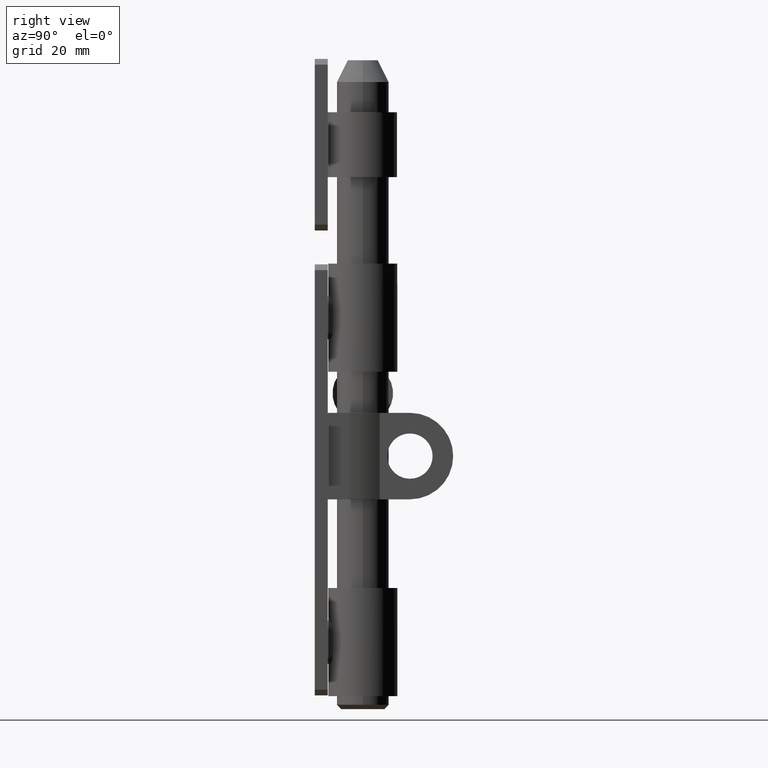
[diagram: clean part render]
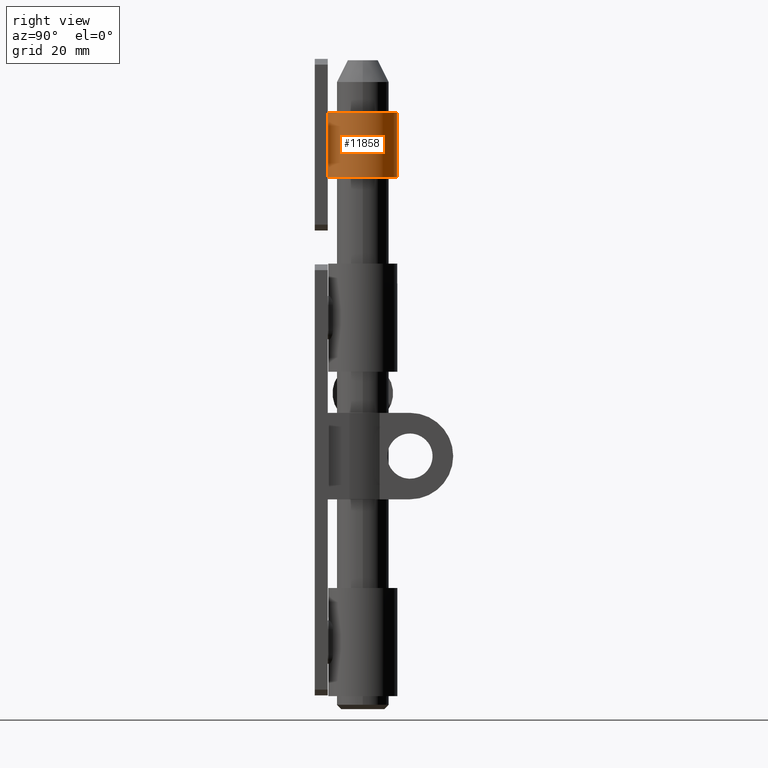
[diagram: same view with one face highlighted and labeled with its STEP entity id]
A machine part, right view. The second image highlights one B-rep face of the part: STEP entity #11858.
In plain terms, the highlighted cylindrical surface (edge-blend (fillet) strip) has radius 8 mm, axis along (0, -0, 1).
Its self-contained STEP definition (entity closure, byte-faithful):
#44 = CIRCLE ( 'NONE', #4455, 8.000000000000003553 ) ;
#224 = DIRECTION ( 'NONE',  ( -0.000000000000000000, -0.000000000000000000, -1.000000000000000000 ) ) ;
#556 = ORIENTED_EDGE ( 'NONE', *, *, #1461, .F. ) ;
#639 = EDGE_CURVE ( 'NONE', #13310, #12913, #1930, .T. ) ;
#781 = DIRECTION ( 'NONE',  ( 0.000000000000000000, 0.000000000000000000, 1.000000000000000000 ) ) ;
#783 = CARTESIAN_POINT ( 'NONE',  ( -4.500000000000000888, 2.999999999999995559, 7.500000000000000000 ) ) ;
#929 = DIRECTION ( 'NONE',  ( -1.000000000000000000, 0.000000000000000000, 0.000000000000000000 ) ) ;
#961 = ORIENTED_EDGE ( 'NONE', *, *, #639, .T. ) ;
#971 = CARTESIAN_POINT ( 'NONE',  ( -4.500000000000000888, 11.00000000000000000, 7.500000000000000000 ) ) ;
#1461 = EDGE_CURVE ( 'NONE', #13310, #14033, #13715, .T. ) ;
#1635 = ORIENTED_EDGE ( 'NONE', *, *, #4506, .T. ) ;
#1730 = CARTESIAN_POINT ( 'NONE',  ( -4.500000000000000888, 19.00000000000000355, 7.500000000000000000 ) ) ;
#1930 = LINE ( 'NONE', #10468, #4562 ) ;
#2086 = AXIS2_PLACEMENT_3D ( 'NONE', #971, #14555, #929 ) ;
#3205 = VECTOR ( 'NONE', #10614, 1000.000000000000000 ) ;
#3581 = CYLINDRICAL_SURFACE ( 'NONE', #2086, 8.000000000000003553 ) ;
#4455 = AXIS2_PLACEMENT_3D ( 'NONE', #9670, #10936, #12103 ) ;
#4506 = EDGE_CURVE ( 'NONE', #12913, #7190, #44, .T. ) ;
#4514 = EDGE_LOOP ( 'NONE', ( #1635, #7859, #556, #961 ) ) ;
#4562 = VECTOR ( 'NONE', #224, 1000.000000000000000 ) ;
#5387 = CARTESIAN_POINT ( 'NONE',  ( -4.500000000000000888, 11.00000000000000000, 7.500000000000000000 ) ) ;
#5994 = CARTESIAN_POINT ( 'NONE',  ( -4.500000000000000888, 2.999999999999995559, 7.500000000000000000 ) ) ;
#6293 = EDGE_CURVE ( 'NONE', #14033, #7190, #10407, .T. ) ;
#6546 = DIRECTION ( 'NONE',  ( 1.000000000000000000, 0.000000000000000000, 0.000000000000000000 ) ) ;
#6906 = AXIS2_PLACEMENT_3D ( 'NONE', #5387, #781, #6546 ) ;
#7190 = VERTEX_POINT ( 'NONE', #9115 ) ;
#7859 = ORIENTED_EDGE ( 'NONE', *, *, #6293, .F. ) ;
#9115 = CARTESIAN_POINT ( 'NONE',  ( -4.500000000000000888, 2.999999999999995559, -7.500000000000000000 ) ) ;
#9670 = CARTESIAN_POINT ( 'NONE',  ( -4.500000000000000888, 11.00000000000000000, -7.500000000000000000 ) ) ;
#9916 = CARTESIAN_POINT ( 'NONE',  ( -4.500000000000000888, 19.00000000000000355, -7.500000000000000000 ) ) ;
#10407 = LINE ( 'NONE', #5994, #3205 ) ;
#10468 = CARTESIAN_POINT ( 'NONE',  ( -4.500000000000000888, 19.00000000000000355, 7.500000000000000000 ) ) ;
#10614 = DIRECTION ( 'NONE',  ( -0.000000000000000000, -0.000000000000000000, -1.000000000000000000 ) ) ;
#10936 = DIRECTION ( 'NONE',  ( 0.000000000000000000, 0.000000000000000000, 1.000000000000000000 ) ) ;
#11858 = ADVANCED_FACE ( 'NONE', ( #13794 ), #3581, .T. ) ;
#12103 = DIRECTION ( 'NONE',  ( 1.000000000000000000, 0.000000000000000000, 0.000000000000000000 ) ) ;
#12913 = VERTEX_POINT ( 'NONE', #9916 ) ;
#13310 = VERTEX_POINT ( 'NONE', #1730 ) ;
#13715 = CIRCLE ( 'NONE', #6906, 8.000000000000003553 ) ;
#13794 = FACE_OUTER_BOUND ( 'NONE', #4514, .T. ) ;
#14033 = VERTEX_POINT ( 'NONE', #783 ) ;
#14555 = DIRECTION ( 'NONE',  ( -0.000000000000000000, -0.000000000000000000, -1.000000000000000000 ) ) ;